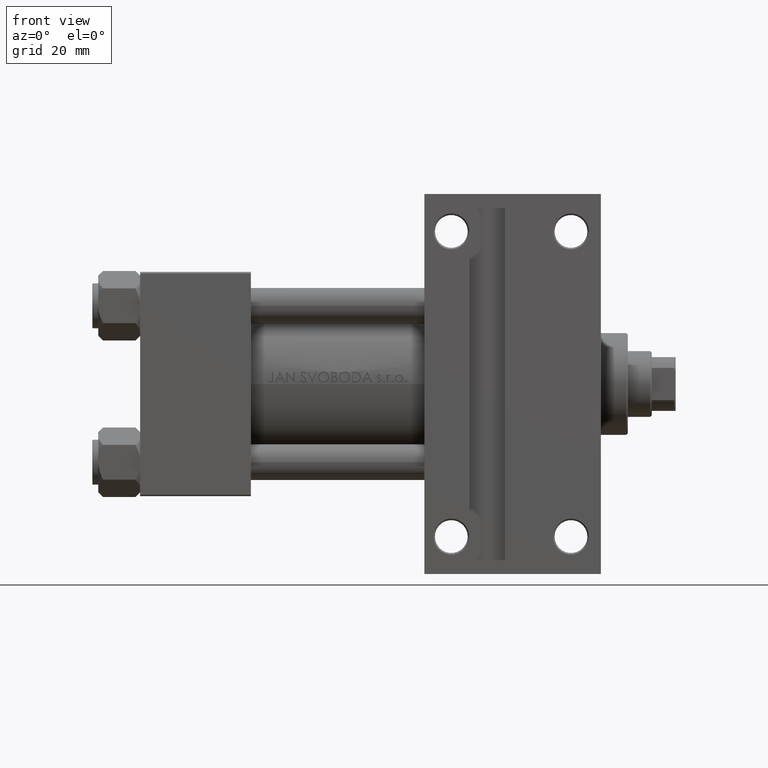
[diagram: clean part render]
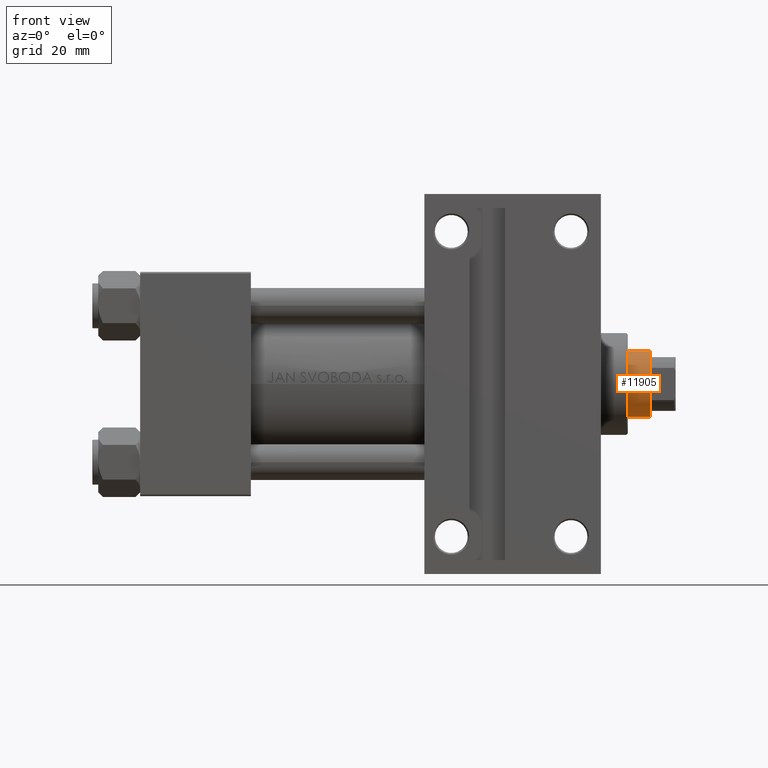
[diagram: same view with one face highlighted and labeled with its STEP entity id]
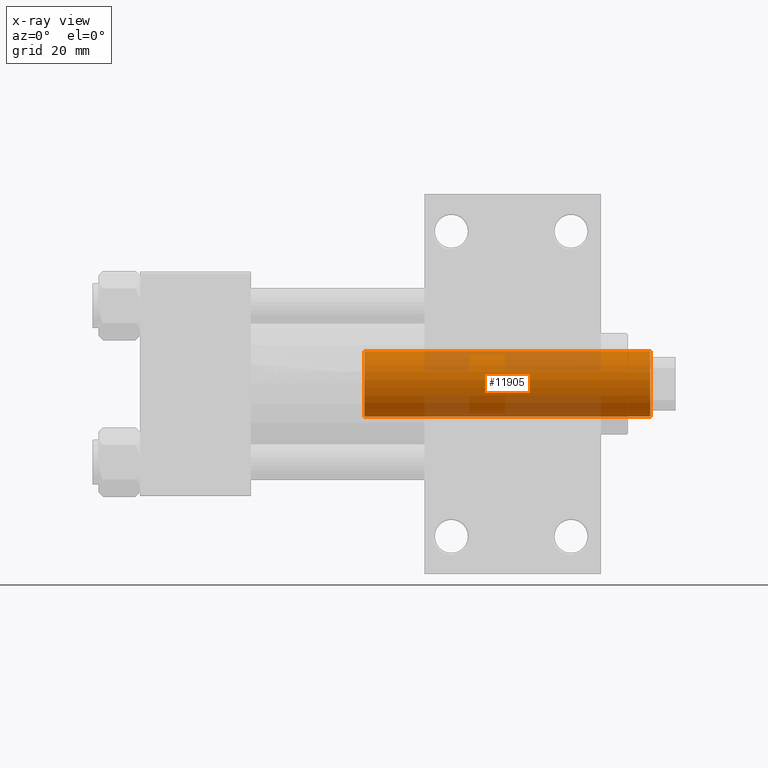
[diagram: x-ray of the same camera — body ghosted, the highlighted face saturated]
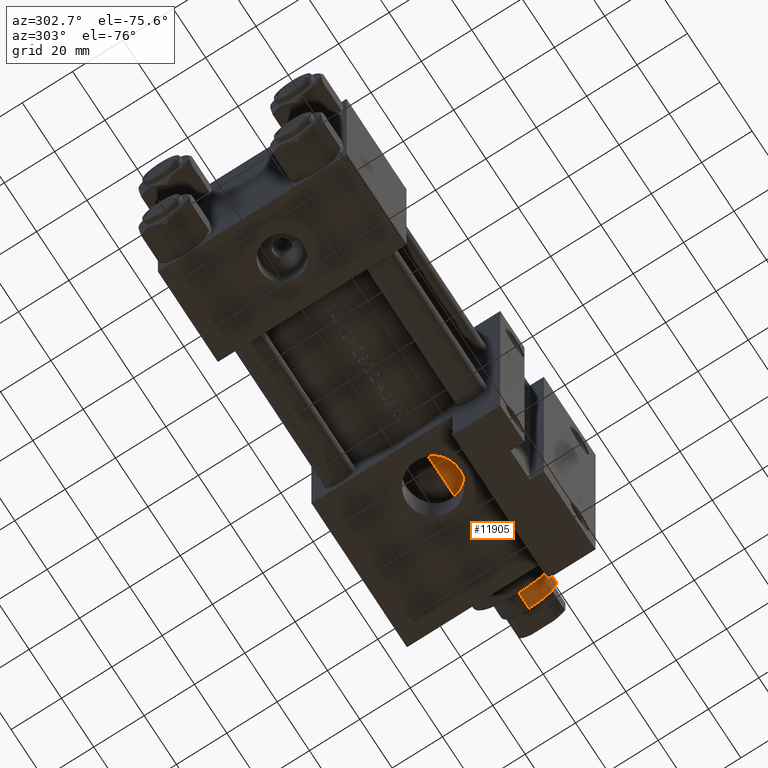
[diagram: same view with one face highlighted and labeled with its STEP entity id]
A machine part, front view. The second image highlights one B-rep face of the part: STEP entity #11905.
The next image is the same camera in x-ray: the body ghosted, the highlighted face saturated — about 32% of this face is hidden behind the body in this view.
A second angle (auxiliary view) of the same face is appended — the face is thin or edge-on in the first view.
In plain terms, the highlighted cylindrical surface (edge-blend (fillet) strip) has radius 11 mm, axis along (-1, 0, 0).
Its self-contained STEP definition (entity closure, byte-faithful):
#1621 = VERTEX_POINT ( 'NONE', #34216 ) ;
#1899 = VERTEX_POINT ( 'NONE', #29370 ) ;
#2871 = ORIENTED_EDGE ( 'NONE', *, *, #41175, .F. ) ;
#4242 = DIRECTION ( 'NONE',  ( -0.000000000000000000, -0.000000000000000000, -1.000000000000000000 ) ) ;
#4381 = CARTESIAN_POINT ( 'NONE',  ( -11.00000000000000000, 0.000000000000000000, 134.0000000000000000 ) ) ;
#5098 = LINE ( 'NONE', #4381, #33285 ) ;
#6119 = CIRCLE ( 'NONE', #36122, 11.00000000000000000 ) ;
#6797 = DIRECTION ( 'NONE',  ( 1.000000000000000000, 0.000000000000000000, 0.000000000000000000 ) ) ;
#7702 = EDGE_CURVE ( 'NONE', #46925, #39929, #7826, .T. ) ;
#7826 = LINE ( 'NONE', #36776, #42493 ) ;
#9062 = EDGE_CURVE ( 'NONE', #39929, #1899, #30191, .T. ) ;
#9698 = CARTESIAN_POINT ( 'NONE',  ( 0.000000000000000000, 0.000000000000000000, 38.00000000000000000 ) ) ;
#11905 = ADVANCED_FACE ( 'NONE', ( #13448 ), #42838, .T. ) ;
#12669 = ORIENTED_EDGE ( 'NONE', *, *, #33011, .T. ) ;
#13448 = FACE_OUTER_BOUND ( 'NONE', #46451, .T. ) ;
#16176 = DIRECTION ( 'NONE',  ( -0.000000000000000000, -0.000000000000000000, -1.000000000000000000 ) ) ;
#16600 = DIRECTION ( 'NONE',  ( 1.000000000000000000, 0.000000000000000000, 0.000000000000000000 ) ) ;
#17878 = DIRECTION ( 'NONE',  ( 0.000000000000000000, 0.000000000000000000, 1.000000000000000000 ) ) ;
#19351 = ORIENTED_EDGE ( 'NONE', *, *, #7702, .T. ) ;
#19433 = AXIS2_PLACEMENT_3D ( 'NONE', #9698, #17878, #6797 ) ;
#19497 = DIRECTION ( 'NONE',  ( 0.000000000000000000, 0.000000000000000000, -1.000000000000000000 ) ) ;
#22318 = CARTESIAN_POINT ( 'NONE',  ( 0.000000000000000000, 0.000000000000000000, 134.0000000000000000 ) ) ;
#22786 = DIRECTION ( 'NONE',  ( -1.000000000000000000, 0.000000000000000000, 0.000000000000000000 ) ) ;
#24472 = CARTESIAN_POINT ( 'NONE',  ( 11.00000000000000000, 1.347111479062088405E-15, 38.00000000000000000 ) ) ;
#27964 = ORIENTED_EDGE ( 'NONE', *, *, #9062, .T. ) ;
#29370 = CARTESIAN_POINT ( 'NONE',  ( -11.00000000000000000, 0.000000000000000000, 38.00000000000000000 ) ) ;
#30191 = CIRCLE ( 'NONE', #19433, 11.00000000000000000 ) ;
#32314 = CARTESIAN_POINT ( 'NONE',  ( 11.00000000000000000, 1.347111479062088405E-15, 133.5000000000000000 ) ) ;
#33011 = EDGE_CURVE ( 'NONE', #1621, #46925, #6119, .T. ) ;
#33285 = VECTOR ( 'NONE', #16176, 1000.000000000000000 ) ;
#34216 = CARTESIAN_POINT ( 'NONE',  ( -11.00000000000000000, 0.000000000000000000, 133.5000000000000000 ) ) ;
#36122 = AXIS2_PLACEMENT_3D ( 'NONE', #38060, #19497, #16600 ) ;
#36776 = CARTESIAN_POINT ( 'NONE',  ( 11.00000000000000000, 1.347111479062088405E-15, 134.0000000000000000 ) ) ;
#37243 = DIRECTION ( 'NONE',  ( -0.000000000000000000, -0.000000000000000000, -1.000000000000000000 ) ) ;
#38060 = CARTESIAN_POINT ( 'NONE',  ( 0.000000000000000000, 0.000000000000000000, 133.5000000000000000 ) ) ;
#39929 = VERTEX_POINT ( 'NONE', #24472 ) ;
#41175 = EDGE_CURVE ( 'NONE', #1621, #1899, #5098, .T. ) ;
#42493 = VECTOR ( 'NONE', #37243, 1000.000000000000000 ) ;
#42838 = CYLINDRICAL_SURFACE ( 'NONE', #45718, 11.00000000000000000 ) ;
#45718 = AXIS2_PLACEMENT_3D ( 'NONE', #22318, #4242, #22786 ) ;
#46451 = EDGE_LOOP ( 'NONE', ( #12669, #19351, #27964, #2871 ) ) ;
#46925 = VERTEX_POINT ( 'NONE', #32314 ) ;